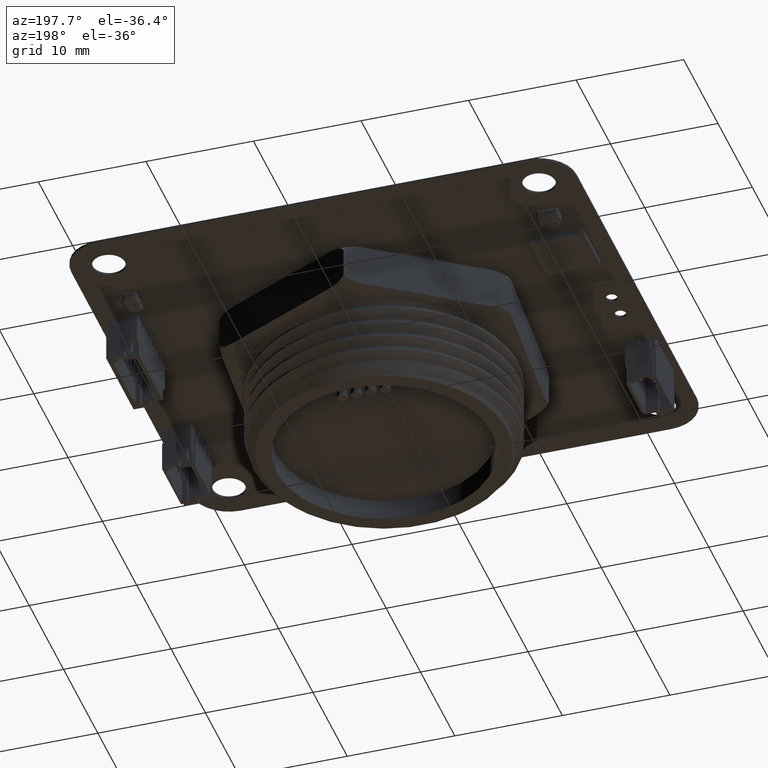
[diagram: clean part render]
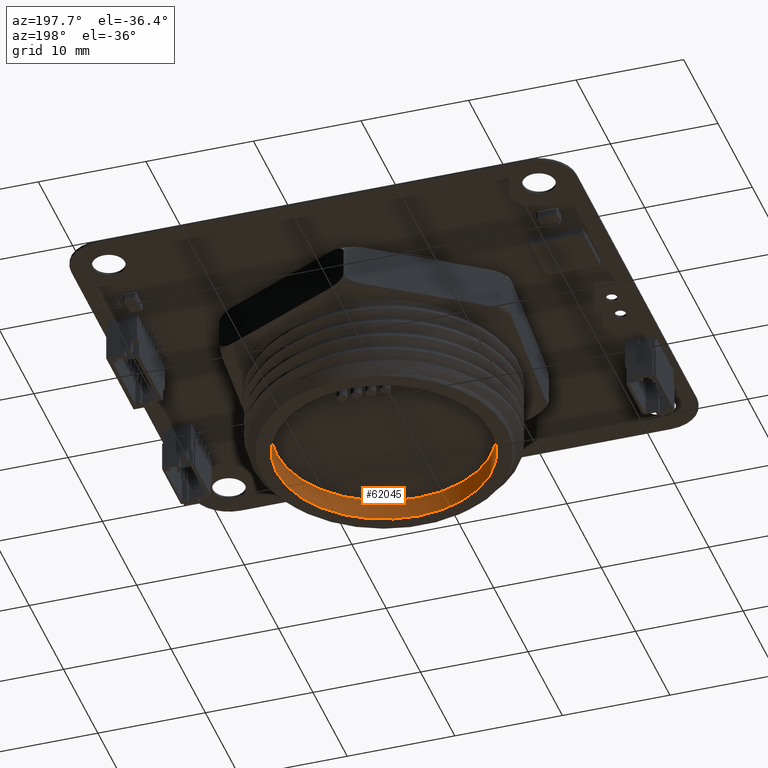
[diagram: same view with one face highlighted and labeled with its STEP entity id]
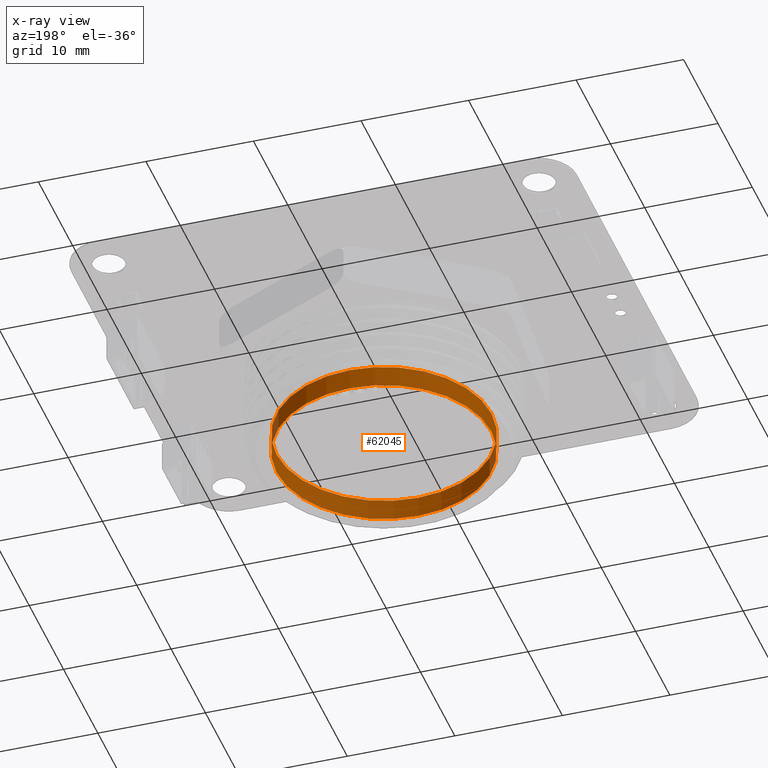
[diagram: x-ray of the same camera — body ghosted, the highlighted face saturated]
A machine part, auxiliary view. The second image highlights one B-rep face of the part: STEP entity #62045.
The next image is the same camera in x-ray: the body ghosted, the highlighted face saturated — about 0% of this face is hidden behind the body in this view.
In plain terms, the highlighted cylindrical surface (bore or boss wall) has radius 10 mm, axis along (-0, 0, 1).
Its self-contained STEP definition (entity closure, byte-faithful):
#62032 = EDGE_CURVE('',#62033,#62033,#62035,.T.);
#62033 = VERTEX_POINT('',#62034);
#62034 = CARTESIAN_POINT('',(-10.00000014901,0.,-1.224646817396E-15));
#62035 = CIRCLE('',#62036,10.000000149012);
#62036 = AXIS2_PLACEMENT_3D('',#62037,#62038,#62039);
#62037 = CARTESIAN_POINT('',(0.,0.,0.));
#62038 = DIRECTION('',(-0.,1.,0.));
#62039 = DIRECTION('',(1.,0.,0.));
#62045 = ADVANCED_FACE('',(#62046),#62065,.F.);
#62046 = FACE_BOUND('',#62047,.F.);
#62047 = EDGE_LOOP('',(#62048,#62056,#62057,#62058));
#62048 = ORIENTED_EDGE('',*,*,#62049,.T.);
#62049 = EDGE_CURVE('',#62050,#62033,#62052,.T.);
#62050 = VERTEX_POINT('',#62051);
#62051 = CARTESIAN_POINT('',(-10.00000014901,2.,-1.224646817396E-15));
#62052 = LINE('',#62053,#62054);
#62053 = CARTESIAN_POINT('',(-10.00000014901,0.,1.224646817396E-15));
#62054 = VECTOR('',#62055,1.);
#62055 = DIRECTION('',(0.,-1.,0.));
#62056 = ORIENTED_EDGE('',*,*,#62032,.T.);
#62057 = ORIENTED_EDGE('',*,*,#62049,.F.);
#62058 = ORIENTED_EDGE('',*,*,#62059,.T.);
#62059 = EDGE_CURVE('',#62050,#62050,#62060,.T.);
#62060 = CIRCLE('',#62061,10.000000149012);
#62061 = AXIS2_PLACEMENT_3D('',#62062,#62063,#62064);
#62062 = CARTESIAN_POINT('',(0.,2.,0.));
#62063 = DIRECTION('',(0.,-1.,0.));
#62064 = DIRECTION('',(1.,0.,0.));
#62065 = CYLINDRICAL_SURFACE('',#62066,10.000000149012);
#62066 = AXIS2_PLACEMENT_3D('',#62067,#62068,#62069);
#62067 = CARTESIAN_POINT('',(0.,0.,0.));
#62068 = DIRECTION('',(0.,1.,0.));
#62069 = DIRECTION('',(1.,0.,0.));